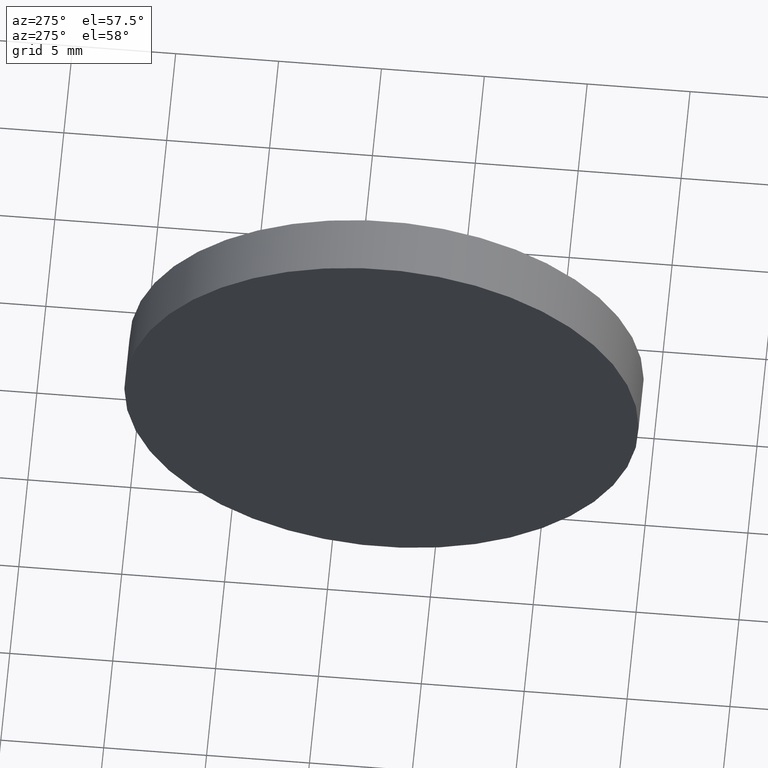
[diagram: clean part render]
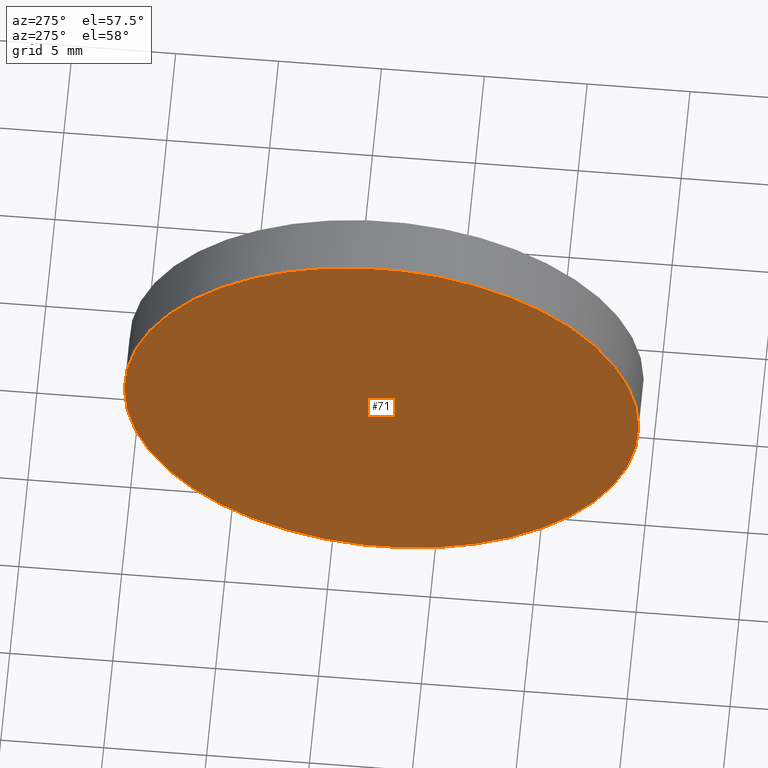
[diagram: same view with one face highlighted and labeled with its STEP entity id]
A machine part, auxiliary view. The second image highlights one B-rep face of the part: STEP entity #71.
In plain terms, the highlighted planar face has unit normal (1, -0, 0).
Its self-contained STEP definition (entity closure, byte-faithful):
#3 = VERTEX_POINT ( 'NONE', #165 ) ;
#16 = AXIS2_PLACEMENT_3D ( 'NONE', #60, #160, #110 ) ;
#20 = VERTEX_POINT ( 'NONE', #124 ) ;
#46 = PLANE ( 'NONE',  #16 ) ;
#55 = EDGE_LOOP ( 'NONE', ( #87, #128 ) ) ;
#56 = CIRCLE ( 'NONE', #96, 12.49999999999999600 ) ;
#58 = DIRECTION ( 'NONE',  ( -5.551115123125784700E-016, -1.000000000000000000, 0.0000000000000000000 ) ) ;
#60 = CARTESIAN_POINT ( 'NONE',  ( 57.35819015802111000, 32.57872591329309100, 0.0000000000000000000 ) ) ;
#69 = DIRECTION ( 'NONE',  ( -5.551115123125784700E-016, -1.000000000000000000, 0.0000000000000000000 ) ) ;
#71 = ADVANCED_FACE ( 'NONE', ( #140 ), #46, .F. ) ;
#75 = EDGE_CURVE ( 'NONE', #20, #3, #56, .T. ) ;
#87 = ORIENTED_EDGE ( 'NONE', *, *, #75, .T. ) ;
#96 = AXIS2_PLACEMENT_3D ( 'NONE', #142, #98, #69 ) ;
#98 = DIRECTION ( 'NONE',  ( -1.000000000000000000, 7.636108817321419600E-016, -0.0000000000000000000 ) ) ;
#110 = DIRECTION ( 'NONE',  ( 7.636108817321419600E-016, 1.000000000000000000, 0.0000000000000000000 ) ) ;
#121 = EDGE_CURVE ( 'NONE', #3, #20, #143, .T. ) ;
#124 = CARTESIAN_POINT ( 'NONE',  ( 57.35819015802110200, 20.07872591329309800, 0.0000000000000000000 ) ) ;
#128 = ORIENTED_EDGE ( 'NONE', *, *, #121, .T. ) ;
#135 = CARTESIAN_POINT ( 'NONE',  ( 57.35819015802111000, 32.57872591329309800, 0.0000000000000000000 ) ) ;
#140 = FACE_OUTER_BOUND ( 'NONE', #55, .T. ) ;
#142 = CARTESIAN_POINT ( 'NONE',  ( 57.35819015802111000, 32.57872591329309800, 0.0000000000000000000 ) ) ;
#143 = CIRCLE ( 'NONE', #163, 12.49999999999999600 ) ;
#158 = DIRECTION ( 'NONE',  ( -1.000000000000000000, 7.636108817321419600E-016, -0.0000000000000000000 ) ) ;
#160 = DIRECTION ( 'NONE',  ( 1.000000000000000000, -7.636108817321419600E-016, 0.0000000000000000000 ) ) ;
#163 = AXIS2_PLACEMENT_3D ( 'NONE', #135, #158, #58 ) ;
#165 = CARTESIAN_POINT ( 'NONE',  ( 57.35819015802111700, 45.07872591329309100, 1.530808498934191900E-015 ) ) ;